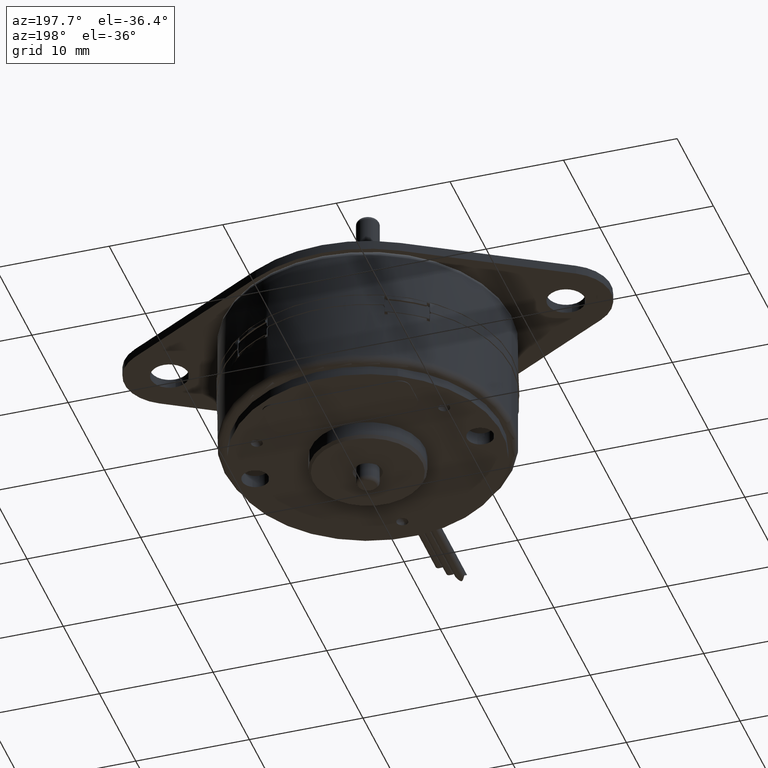
[diagram: clean part render]
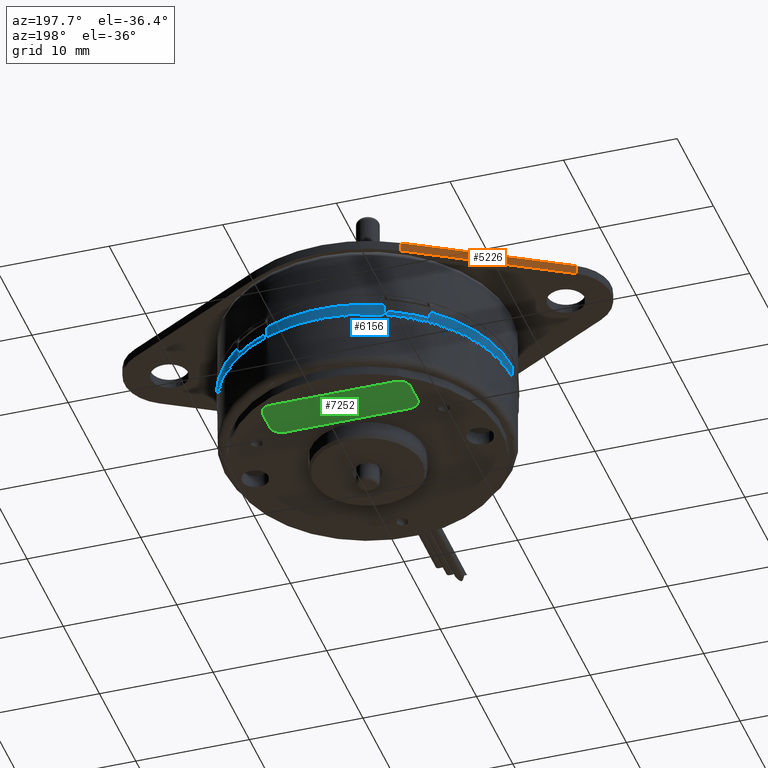
[diagram: same view with three faces highlighted in distinct colors, each labeled with its STEP entity id]
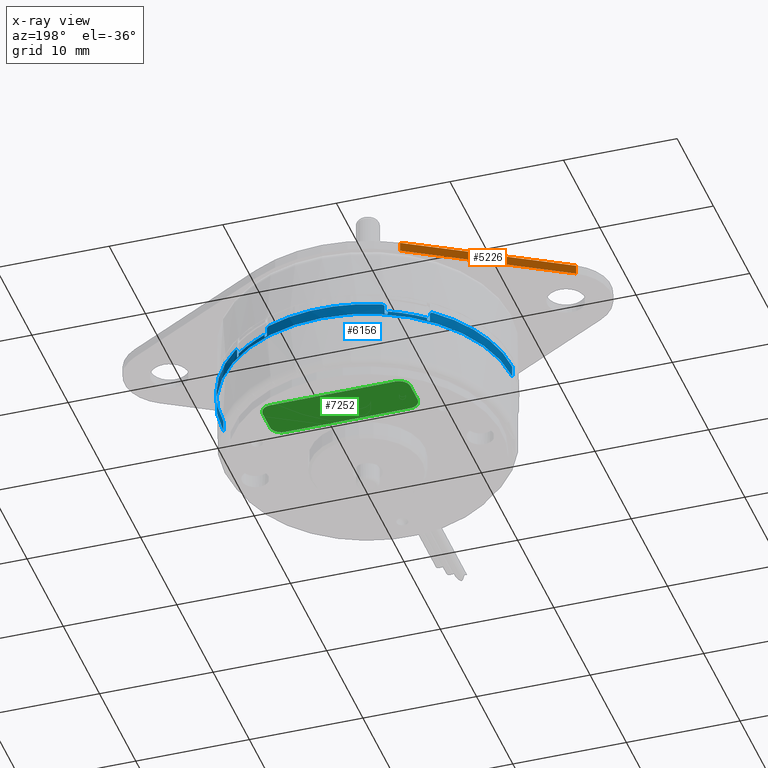
[diagram: x-ray of the same camera — body ghosted, the three highlighted faces saturated]
A machine part, auxiliary view with three faces highlighted in distinct colors.
The next image is the same camera in x-ray (body ghosted, the three faces saturated) — at least one of them is partly hidden behind the body in this view.
Their STEP definitions:

[orange] entity #5226 — the highlighted planar face has unit normal (-0.5007, 0.8656, 0).
#471=DIRECTION('',(-8.656047991239E-1,-5.007278020378E-1,0.E0));
#472=VECTOR('',#471,5.946704969979E-1);
#473=CARTESIAN_POINT('',(-2.503639010190E-1,4.328023995619E-1,2.28E-1));
#474=LINE('',#473,#472);
#549=DIRECTION('',(0.E0,0.E0,1.E0));
#550=VECTOR('',#549,3.2E-2);
#551=CARTESIAN_POINT('',(-7.651135371178E-1,1.350343486634E-1,2.28E-1));
#552=LINE('',#551,#550);
#561=DIRECTION('',(0.E0,0.E0,-1.E0));
#562=VECTOR('',#561,3.2E-2);
#563=CARTESIAN_POINT('',(-2.503639010190E-1,4.328023995619E-1,2.6E-1));
#564=LINE('',#563,#562);
#597=DIRECTION('',(8.656047991239E-1,5.007278020378E-1,0.E0));
#598=VECTOR('',#597,5.946704969979E-1);
#599=CARTESIAN_POINT('',(-7.651135371178E-1,1.350343486634E-1,2.6E-1));
#600=LINE('',#599,#598);
#4181=CARTESIAN_POINT('',(-2.503639010192E-1,4.328023995618E-1,2.28E-1));
#4182=VERTEX_POINT('',#4181);
#4183=CARTESIAN_POINT('',(-7.651135371178E-1,1.350343486634E-1,2.28E-1));
#4184=VERTEX_POINT('',#4183);
#4219=CARTESIAN_POINT('',(-7.651135371178E-1,1.350343486634E-1,2.6E-1));
#4220=VERTEX_POINT('',#4219);
#4221=CARTESIAN_POINT('',(-2.503639010190E-1,4.328023995619E-1,2.6E-1));
#4222=VERTEX_POINT('',#4221);
#5213=CARTESIAN_POINT('',(-5.077387190684E-1,2.839183741126E-1,2.44E-1));
#5214=DIRECTION('',(-5.007278020377E-1,8.656047991240E-1,0.E0));
#5215=DIRECTION('',(-8.656047991240E-1,-5.007278020377E-1,0.E0));
#5216=AXIS2_PLACEMENT_3D('',#5213,#5214,#5215);
#5217=PLANE('',#5216);
#5218=ORIENTED_EDGE('',*,*,#5088,.F.);
#5220=ORIENTED_EDGE('',*,*,#5219,.F.);
#5222=ORIENTED_EDGE('',*,*,#5221,.F.);
#5223=ORIENTED_EDGE('',*,*,#5205,.F.);
#5224=EDGE_LOOP('',(#5218,#5220,#5222,#5223));
#5225=FACE_OUTER_BOUND('',#5224,.F.);
#5226=ADVANCED_FACE('',(#5225),#5217,.T.);
#5088=EDGE_CURVE('',#4182,#4184,#474,.T.);
#5205=EDGE_CURVE('',#4184,#4220,#552,.T.);
#5219=EDGE_CURVE('',#4222,#4182,#564,.T.);
#5221=EDGE_CURVE('',#4220,#4222,#600,.T.);

[blue] entity #6156 — the highlighted cylindrical surface (partial cylindrical patch) has radius 12.7152 mm, axis along (0, 0, 1).
#1184=CARTESIAN_POINT('',(0.E0,0.E0,-3.999999999999E-2));
#1185=DIRECTION('',(0.E0,0.E0,-1.E0));
#1186=DIRECTION('',(-1.E0,0.E0,0.E0));
#1187=AXIS2_PLACEMENT_3D('',#1184,#1185,#1186);
#1204=CARTESIAN_POINT('',(-3.418327743804E-1,3.657194476090E-1,0.E0));
#1205=CARTESIAN_POINT('',(-3.407988221647E-1,3.666858680627E-1,0.E0));
#1206=CARTESIAN_POINT('',(-3.388965643415E-1,3.684482163924E-1,
-5.370240321818E-4));
#1207=CARTESIAN_POINT('',(-3.363476169728E-1,3.707741419090E-1,
-2.820784511996E-3));
#1208=CARTESIAN_POINT('',(-3.347153958256E-1,3.722452590052E-1,
-6.234437307436E-3));
#1209=CARTESIAN_POINT('',(-3.343561370262E-1,3.725672202878E-1,
-8.683681703894E-3));
#1210=CARTESIAN_POINT('',(-3.343561370262E-1,3.725672202878E-1,
-9.999999999995E-3));
#1212=DIRECTION('',(5.736152293896E-13,-5.283839209790E-13,-1.E0));
#1213=VECTOR('',#1212,2.7E-2);
#1214=CARTESIAN_POINT('',(-3.343561370262E-1,3.725672202878E-1,
-9.999999999995E-3));
#1215=LINE('',#1214,#1213);
#1216=DIRECTION('',(-3.885780586189E-13,-2.053912595557E-13,1.E0));
#1217=VECTOR('',#1216,9.999999999999E-3);
#1218=CARTESIAN_POINT('',(-3.267666575324E-1,3.792412313095E-1,-3.7E-2));
#1219=LINE('',#1218,#1217);
#1220=DIRECTION('',(1.998401444325E-13,-1.110223024625E-14,-1.E0));
#1221=VECTOR('',#1220,1.E-2);
#1222=CARTESIAN_POINT('',(-2.135461308597E-1,4.527675010365E-1,-2.7E-2));
#1223=LINE('',#1222,#1221);
#1224=DIRECTION('',(-4.317533984655E-13,-9.169619795981E-13,1.E0));
#1225=VECTOR('',#1224,2.699999999999E-2);
#1226=CARTESIAN_POINT('',(-2.043621989945E-1,4.569862707151E-1,-3.7E-2));
#1227=LINE('',#1226,#1225);
#1228=CARTESIAN_POINT('',(-2.043621989946E-1,4.569862707151E-1,-1.E-2));
#1229=CARTESIAN_POINT('',(-2.043621989946E-1,4.569862707151E-1,
-8.632951539519E-3));
#1230=CARTESIAN_POINT('',(-2.038849576157E-1,4.572000986402E-1,
-6.114467238421E-3));
#1231=CARTESIAN_POINT('',(-2.018111459979E-1,4.581217662711E-1,
-2.708755781166E-3));
#1232=CARTESIAN_POINT('',(-1.986414901143E-1,4.595067200905E-1,
-4.964871199830E-4));
#1233=CARTESIAN_POINT('',(-1.963216851718E-1,4.604997466312E-1,0.E0));
#1234=CARTESIAN_POINT('',(-1.950654249900E-1,4.610312787366E-1,0.E0));
#1236=CARTESIAN_POINT('',(1.950654249900E-1,4.610312787366E-1,0.E0));
#1237=CARTESIAN_POINT('',(1.963688402588E-1,4.604797949977E-1,0.E0));
#1238=CARTESIAN_POINT('',(1.987525435311E-1,4.594588076478E-1,
-5.370240319676E-4));
#1239=CARTESIAN_POINT('',(2.019141325177E-1,4.580762674940E-1,
-2.820784511618E-3));
#1240=CARTESIAN_POINT('',(2.039219490088E-1,4.571835165084E-1,
-6.234437305840E-3));
#1241=CARTESIAN_POINT('',(2.043621989946E-1,4.569862707151E-1,
-8.683681703205E-3));
#1242=CARTESIAN_POINT('',(2.043621989946E-1,4.569862707151E-1,-1.E-2));
#1244=DIRECTION('',(-7.977158028790E-13,3.556825615929E-13,-1.E0));
#1245=VECTOR('',#1244,2.699999999999E-2);
#1246=CARTESIAN_POINT('',(2.043621989946E-1,4.569862707151E-1,-1.E-2));
#1247=LINE('',#1246,#1245);
#1248=DIRECTION('',(-1.526556658860E-12,8.049116928533E-13,1.E0));
#1249=VECTOR('',#1248,9.999999999999E-3);
#1250=CARTESIAN_POINT('',(2.135461308598E-1,4.527675010365E-1,-3.7E-2));
#1251=LINE('',#1250,#1249);
#1252=DIRECTION('',(1.110223024625E-13,-7.771561172376E-14,-1.E0));
#1253=VECTOR('',#1252,1.E-2);
#1254=CARTESIAN_POINT('',(3.267666575324E-1,3.792412313095E-1,-2.7E-2));
#1255=LINE('',#1254,#1253);
#1256=DIRECTION('',(-2.981154417976E-13,-6.990293118013E-14,1.E0));
#1257=VECTOR('',#1256,2.699999999999E-2);
#1258=CARTESIAN_POINT('',(3.343561370262E-1,3.725672202877E-1,-3.7E-2));
#1259=LINE('',#1258,#1257);
#1260=CARTESIAN_POINT('',(3.343561370262E-1,3.725672202877E-1,
-1.000000000001E-2));
#1261=CARTESIAN_POINT('',(3.343561370262E-1,3.725672202877E-1,
-8.632951539783E-3));
#1262=CARTESIAN_POINT('',(3.347455901121E-1,3.722182102464E-1,
-6.114467239023E-3));
#1263=CARTESIAN_POINT('',(3.364310705658E-1,3.706985650610E-1,
-2.708755781353E-3));
#1264=CARTESIAN_POINT('',(3.389855040306E-1,3.683662517934E-1,
-4.964871197591E-4));
#1265=CARTESIAN_POINT('',(3.408362285909E-1,3.666509048072E-1,0.E0));
#1266=CARTESIAN_POINT('',(3.418327743805E-1,3.657194476089E-1,0.E0));
#1287=CARTESIAN_POINT('',(0.E0,0.E0,0.E0));
#1288=DIRECTION('',(0.E0,0.E0,1.E0));
#1289=DIRECTION('',(1.E0,0.E0,0.E0));
#1290=AXIS2_PLACEMENT_3D('',#1287,#1288,#1289);
#1337=CARTESIAN_POINT('',(0.E0,0.E0,-2.699999999999E-2));
#1338=DIRECTION('',(0.E0,0.E0,1.E0));
#1339=DIRECTION('',(6.527500150466E-1,7.575733745695E-1,0.E0));
#1340=AXIS2_PLACEMENT_3D('',#1337,#1338,#1339);
#1351=CARTESIAN_POINT('',(0.E0,0.E0,-3.699999999999E-2));
#1352=DIRECTION('',(0.E0,0.E0,1.E0));
#1353=DIRECTION('',(6.679107811150E-1,7.442413509543E-1,0.E0));
#1354=AXIS2_PLACEMENT_3D('',#1351,#1352,#1353);
#1385=CARTESIAN_POINT('',(0.E0,0.E0,-3.699999999999E-2));
#1386=DIRECTION('',(0.E0,0.E0,1.E0));
#1387=DIRECTION('',(4.265803652812E-1,9.044496624780E-1,0.E0));
#1388=AXIS2_PLACEMENT_3D('',#1385,#1386,#1387);
#1424=CARTESIAN_POINT('',(0.E0,0.E0,0.E0));
#1425=DIRECTION('',(0.E0,0.E0,1.E0));
#1426=DIRECTION('',(3.896632540752E-1,9.209574085828E-1,0.E0));
#1427=AXIS2_PLACEMENT_3D('',#1424,#1425,#1426);
#1445=CARTESIAN_POINT('',(0.E0,0.E0,-3.699999999999E-2));
#1446=DIRECTION('',(0.E0,0.E0,1.E0));
#1447=DIRECTION('',(-4.082345165692E-1,9.128770889235E-1,0.E0));
#1448=AXIS2_PLACEMENT_3D('',#1445,#1446,#1447);
#1463=CARTESIAN_POINT('',(0.E0,0.E0,-2.699999999999E-2));
#1464=DIRECTION('',(0.E0,0.E0,1.E0));
#1465=DIRECTION('',(-4.265803652811E-1,9.044496624780E-1,0.E0));
#1466=AXIS2_PLACEMENT_3D('',#1463,#1464,#1465);
#1481=CARTESIAN_POINT('',(0.E0,0.E0,-3.699999999999E-2));
#1482=DIRECTION('',(0.E0,0.E0,1.E0));
#1483=DIRECTION('',(-6.527500150467E-1,7.575733745695E-1,0.E0));
#1484=AXIS2_PLACEMENT_3D('',#1481,#1482,#1483);
#1507=CARTESIAN_POINT('',(0.E0,0.E0,0.E0));
#1508=DIRECTION('',(0.E0,0.E0,1.E0));
#1509=DIRECTION('',(-6.828461334007E-1,7.305622205532E-1,0.E0));
#1510=AXIS2_PLACEMENT_3D('',#1507,#1508,#1509);
#1547=DIRECTION('',(0.E0,0.E0,-1.E0));
#1548=VECTOR('',#1547,3.999999999999E-2);
#1549=CARTESIAN_POINT('',(-5.006E-1,0.E0,0.E0));
#1550=LINE('',#1549,#1548);
#1551=DIRECTION('',(0.E0,0.E0,1.E0));
#1552=VECTOR('',#1551,3.999999999999E-2);
#1553=CARTESIAN_POINT('',(5.006E-1,0.E0,-3.999999999999E-2));
#1554=LINE('',#1553,#1552);
#3775=CARTESIAN_POINT('',(-5.006E-1,0.E0,-3.999999999999E-2));
#3776=CARTESIAN_POINT('',(5.006E-1,0.E0,-3.999999999999E-2));
#3777=VERTEX_POINT('',#3775);
#3778=VERTEX_POINT('',#3776);
#3779=CARTESIAN_POINT('',(5.006E-1,0.E0,0.E0));
#3780=CARTESIAN_POINT('',(3.418327743805E-1,3.657194476089E-1,0.E0));
#3781=VERTEX_POINT('',#3779);
#3782=VERTEX_POINT('',#3780);
#3783=CARTESIAN_POINT('',(-5.006E-1,0.E0,0.E0));
#3784=VERTEX_POINT('',#3783);
#3785=CARTESIAN_POINT('',(-3.418327743804E-1,3.657194476089E-1,0.E0));
#3786=VERTEX_POINT('',#3785);
#3787=VERTEX_POINT('',#1210);
#3788=CARTESIAN_POINT('',(-3.343561370262E-1,3.725672202878E-1,-3.7E-2));
#3789=VERTEX_POINT('',#3788);
#3790=CARTESIAN_POINT('',(-3.267666575324E-1,3.792412313095E-1,
-3.699999999999E-2));
#3791=VERTEX_POINT('',#3790);
#3792=CARTESIAN_POINT('',(-3.267666575324E-1,3.792412313095E-1,-2.7E-2));
#3793=VERTEX_POINT('',#3792);
#3794=CARTESIAN_POINT('',(-2.135461308597E-1,4.527675010365E-1,
-2.699999999999E-2));
#3795=VERTEX_POINT('',#3794);
#3796=CARTESIAN_POINT('',(-2.135461308597E-1,4.527675010365E-1,-3.7E-2));
#3797=VERTEX_POINT('',#3796);
#3798=CARTESIAN_POINT('',(-2.043621989946E-1,4.569862707151E-1,
-3.699999999999E-2));
#3799=VERTEX_POINT('',#3798);
#3800=CARTESIAN_POINT('',(-2.043621989946E-1,4.569862707151E-1,-1.E-2));
#3801=VERTEX_POINT('',#3800);
#3802=VERTEX_POINT('',#1234);
#3803=CARTESIAN_POINT('',(1.950654249900E-1,4.610312787366E-1,0.E0));
#3804=VERTEX_POINT('',#3803);
#3805=VERTEX_POINT('',#1242);
#3806=CARTESIAN_POINT('',(2.043621989946E-1,4.569862707151E-1,-3.7E-2));
#3807=VERTEX_POINT('',#3806);
#3808=CARTESIAN_POINT('',(2.135461308598E-1,4.527675010365E-1,
-3.699999999999E-2));
#3809=VERTEX_POINT('',#3808);
#3810=CARTESIAN_POINT('',(2.135461308597E-1,4.527675010365E-1,-2.7E-2));
#3811=VERTEX_POINT('',#3810);
#3812=CARTESIAN_POINT('',(3.267666575323E-1,3.792412313095E-1,
-2.699999999999E-2));
#3813=VERTEX_POINT('',#3812);
#3814=CARTESIAN_POINT('',(3.267666575324E-1,3.792412313095E-1,-3.7E-2));
#3815=VERTEX_POINT('',#3814);
#3816=CARTESIAN_POINT('',(3.343561370262E-1,3.725672202877E-1,
-3.699999999999E-2));
#3817=VERTEX_POINT('',#3816);
#3818=CARTESIAN_POINT('',(3.343561370262E-1,3.725672202877E-1,
-1.000000000001E-2));
#3819=VERTEX_POINT('',#3818);
#6102=CARTESIAN_POINT('',(0.E0,0.E0,-4.298897453355E-2));
#6103=DIRECTION('',(0.E0,0.E0,1.E0));
#6104=DIRECTION('',(-1.E0,0.E0,0.E0));
#6105=AXIS2_PLACEMENT_3D('',#6102,#6103,#6104);
#6106=CYLINDRICAL_SURFACE('',#6105,5.006E-1);
#6108=ORIENTED_EDGE('',*,*,#6107,.F.);
#6110=ORIENTED_EDGE('',*,*,#6109,.F.);
#6111=ORIENTED_EDGE('',*,*,#6091,.F.);
#6113=ORIENTED_EDGE('',*,*,#6112,.F.);
#6115=ORIENTED_EDGE('',*,*,#6114,.F.);
#6117=ORIENTED_EDGE('',*,*,#6116,.T.);
#6119=ORIENTED_EDGE('',*,*,#6118,.T.);
#6121=ORIENTED_EDGE('',*,*,#6120,.F.);
#6123=ORIENTED_EDGE('',*,*,#6122,.T.);
#6125=ORIENTED_EDGE('',*,*,#6124,.F.);
#6127=ORIENTED_EDGE('',*,*,#6126,.T.);
#6129=ORIENTED_EDGE('',*,*,#6128,.F.);
#6131=ORIENTED_EDGE('',*,*,#6130,.T.);
#6133=ORIENTED_EDGE('',*,*,#6132,.T.);
#6135=ORIENTED_EDGE('',*,*,#6134,.F.);
#6137=ORIENTED_EDGE('',*,*,#6136,.T.);
#6139=ORIENTED_EDGE('',*,*,#6138,.T.);
#6141=ORIENTED_EDGE('',*,*,#6140,.F.);
#6143=ORIENTED_EDGE('',*,*,#6142,.T.);
#6145=ORIENTED_EDGE('',*,*,#6144,.F.);
#6147=ORIENTED_EDGE('',*,*,#6146,.T.);
#6149=ORIENTED_EDGE('',*,*,#6148,.F.);
#6151=ORIENTED_EDGE('',*,*,#6150,.T.);
#6153=ORIENTED_EDGE('',*,*,#6152,.T.);
#6154=EDGE_LOOP('',(#6108,#6110,#6111,#6113,#6115,#6117,#6119,#6121,#6123,#6125,
#6127,#6129,#6131,#6133,#6135,#6137,#6139,#6141,#6143,#6145,#6147,#6149,#6151,
#6153));
#6155=FACE_OUTER_BOUND('',#6154,.F.);
#6156=ADVANCED_FACE('',(#6155),#6106,.F.);
#1188=CIRCLE('',#1187,5.006E-1);
#1211=B_SPLINE_CURVE_WITH_KNOTS('',3,(#1204,#1205,#1206,#1207,#1208,#1209,
#1210),.UNSPECIFIED.,.F.,.F.,(4,1,1,1,4),(0.E0,2.5E-1,5.E-1,7.5E-1,1.E0),
.UNSPECIFIED.);
#1235=B_SPLINE_CURVE_WITH_KNOTS('',3,(#1228,#1229,#1230,#1231,#1232,#1233,
#1234),.UNSPECIFIED.,.F.,.F.,(4,1,1,1,4),(0.E0,2.5E-1,5.E-1,7.5E-1,1.E0),
.UNSPECIFIED.);
#1243=B_SPLINE_CURVE_WITH_KNOTS('',3,(#1236,#1237,#1238,#1239,#1240,#1241,
#1242),.UNSPECIFIED.,.F.,.F.,(4,1,1,1,4),(0.E0,2.5E-1,5.E-1,7.5E-1,1.E0),
.UNSPECIFIED.);
#1267=B_SPLINE_CURVE_WITH_KNOTS('',3,(#1260,#1261,#1262,#1263,#1264,#1265,
#1266),.UNSPECIFIED.,.F.,.F.,(4,1,1,1,4),(0.E0,2.5E-1,5.E-1,7.5E-1,1.E0),
.UNSPECIFIED.);
#1291=CIRCLE('',#1290,5.006E-1);
#1341=CIRCLE('',#1340,5.006E-1);
#1355=CIRCLE('',#1354,5.006E-1);
#1389=CIRCLE('',#1388,5.006E-1);
#1428=CIRCLE('',#1427,5.006E-1);
#1449=CIRCLE('',#1448,5.006E-1);
#1467=CIRCLE('',#1466,5.006E-1);
#1485=CIRCLE('',#1484,5.006E-1);
#1511=CIRCLE('',#1510,5.006E-1);
#6091=EDGE_CURVE('',#3777,#3778,#1188,.T.);
#6107=EDGE_CURVE('',#3781,#3782,#1291,.T.);
#6109=EDGE_CURVE('',#3778,#3781,#1554,.T.);
#6112=EDGE_CURVE('',#3784,#3777,#1550,.T.);
#6114=EDGE_CURVE('',#3786,#3784,#1511,.T.);
#6116=EDGE_CURVE('',#3786,#3787,#1211,.T.);
#6118=EDGE_CURVE('',#3787,#3789,#1215,.T.);
#6120=EDGE_CURVE('',#3791,#3789,#1485,.T.);
#6122=EDGE_CURVE('',#3791,#3793,#1219,.T.);
#6124=EDGE_CURVE('',#3795,#3793,#1467,.T.);
#6126=EDGE_CURVE('',#3795,#3797,#1223,.T.);
#6128=EDGE_CURVE('',#3799,#3797,#1449,.T.);
#6130=EDGE_CURVE('',#3799,#3801,#1227,.T.);
#6132=EDGE_CURVE('',#3801,#3802,#1235,.T.);
#6134=EDGE_CURVE('',#3804,#3802,#1428,.T.);
#6136=EDGE_CURVE('',#3804,#3805,#1243,.T.);
#6138=EDGE_CURVE('',#3805,#3807,#1247,.T.);
#6140=EDGE_CURVE('',#3809,#3807,#1389,.T.);
#6142=EDGE_CURVE('',#3809,#3811,#1251,.T.);
#6144=EDGE_CURVE('',#3813,#3811,#1341,.T.);
#6146=EDGE_CURVE('',#3813,#3815,#1255,.T.);
#6148=EDGE_CURVE('',#3817,#3815,#1355,.T.);
#6150=EDGE_CURVE('',#3817,#3819,#1259,.T.);
#6152=EDGE_CURVE('',#3819,#3782,#1267,.T.);

[green] entity #7252 — the highlighted planar face has unit normal (0, 0, 1).
#2060=DIRECTION('',(0.E0,1.E0,0.E0));
#2061=VECTOR('',#2060,7.874015748102E-2);
#2062=CARTESIAN_POINT('',(-2.559055118110E-1,2.606299212595E-1,
-2.629921259842E-1));
#2063=LINE('',#2062,#2061);
#2072=DIRECTION('',(-1.E0,-7.710044723868E-14,0.E0));
#2073=VECTOR('',#2072,4.330708661421E-1);
#2074=CARTESIAN_POINT('',(2.165354330709E-1,2.212598425197E-1,
-2.629921259842E-1));
#2075=LINE('',#2074,#2073);
#2084=DIRECTION('',(0.E0,-1.E0,0.E0));
#2085=VECTOR('',#2084,7.874015748038E-2);
#2086=CARTESIAN_POINT('',(2.559055118110E-1,3.393700787402E-1,
-2.629921259842E-1));
#2087=LINE('',#2086,#2085);
#2096=DIRECTION('',(1.E0,-7.690817679673E-14,0.E0));
#2097=VECTOR('',#2096,4.330708661419E-1);
#2098=CARTESIAN_POINT('',(-2.165354330711E-1,3.787401574803E-1,
-2.629921259842E-1));
#2099=LINE('',#2098,#2097);
#2100=CARTESIAN_POINT('',(-2.165354330709E-1,3.393700787402E-1,
-2.629921259842E-1));
#2101=DIRECTION('',(0.E0,0.E0,1.E0));
#2102=DIRECTION('',(-1.602516452868E-11,1.E0,0.E0));
#2103=AXIS2_PLACEMENT_3D('',#2100,#2101,#2102);
#2105=CARTESIAN_POINT('',(-2.165354330709E-1,2.606299212598E-1,
-2.629921259842E-1));
#2106=DIRECTION('',(0.E0,0.E0,1.E0));
#2107=DIRECTION('',(-1.E0,-1.808726501904E-11,0.E0));
#2108=AXIS2_PLACEMENT_3D('',#2105,#2106,#2107);
#2110=CARTESIAN_POINT('',(2.165354330709E-1,2.606299212598E-1,
-2.629921259842E-1));
#2111=DIRECTION('',(0.E0,0.E0,1.E0));
#2112=DIRECTION('',(3.209121857144E-12,-1.E0,0.E0));
#2113=AXIS2_PLACEMENT_3D('',#2110,#2111,#2112);
#2115=CARTESIAN_POINT('',(2.165354330709E-1,3.393700787402E-1,
-2.629921259842E-1));
#2116=DIRECTION('',(0.E0,0.E0,1.E0));
#2117=DIRECTION('',(1.E0,-1.147726358399E-12,0.E0));
#2118=AXIS2_PLACEMENT_3D('',#2115,#2116,#2117);
#4028=CARTESIAN_POINT('',(-2.559055118110E-1,3.393700787405E-1,
-2.629921259842E-1));
#4029=VERTEX_POINT('',#4028);
#4030=CARTESIAN_POINT('',(-2.165354330715E-1,3.787401574804E-1,
-2.629921259842E-1));
#4031=VERTEX_POINT('',#4030);
#4032=CARTESIAN_POINT('',(-2.559055118110E-1,2.606299212595E-1,
-2.629921259842E-1));
#4033=VERTEX_POINT('',#4032);
#4034=CARTESIAN_POINT('',(-2.165354330712E-1,2.212598425197E-1,
-2.629921259842E-1));
#4035=VERTEX_POINT('',#4034);
#4036=CARTESIAN_POINT('',(2.165354330709E-1,2.212598425197E-1,
-2.629921259842E-1));
#4037=VERTEX_POINT('',#4036);
#4038=CARTESIAN_POINT('',(2.559055118110E-1,2.606299212598E-1,
-2.629921259842E-1));
#4039=VERTEX_POINT('',#4038);
#4040=CARTESIAN_POINT('',(2.559055118110E-1,3.393700787402E-1,
-2.629921259842E-1));
#4041=VERTEX_POINT('',#4040);
#4042=CARTESIAN_POINT('',(2.165354330708E-1,3.787401574803E-1,
-2.629921259842E-1));
#4043=VERTEX_POINT('',#4042);
#7237=CARTESIAN_POINT('',(0.E0,3.E-1,-2.629921259843E-1));
#7238=DIRECTION('',(0.E0,0.E0,1.E0));
#7239=DIRECTION('',(1.E0,0.E0,0.E0));
#7240=AXIS2_PLACEMENT_3D('',#7237,#7238,#7239);
#7241=PLANE('',#7240);
#7242=ORIENTED_EDGE('',*,*,#7133,.T.);
#7243=ORIENTED_EDGE('',*,*,#7148,.F.);
#7244=ORIENTED_EDGE('',*,*,#7162,.T.);
#7245=ORIENTED_EDGE('',*,*,#7176,.F.);
#7246=ORIENTED_EDGE('',*,*,#7190,.T.);
#7247=ORIENTED_EDGE('',*,*,#7204,.F.);
#7248=ORIENTED_EDGE('',*,*,#7218,.T.);
#7249=ORIENTED_EDGE('',*,*,#7231,.F.);
#7250=EDGE_LOOP('',(#7242,#7243,#7244,#7245,#7246,#7247,#7248,#7249));
#7251=FACE_OUTER_BOUND('',#7250,.F.);
#7252=ADVANCED_FACE('',(#7251),#7241,.F.);
#2104=CIRCLE('',#2103,3.937007874020E-2);
#2109=CIRCLE('',#2108,3.937007874020E-2);
#2114=CIRCLE('',#2113,3.937007874010E-2);
#2119=CIRCLE('',#2118,3.937007874010E-2);
#7133=EDGE_CURVE('',#4031,#4029,#2104,.T.);
#7148=EDGE_CURVE('',#4033,#4029,#2063,.T.);
#7162=EDGE_CURVE('',#4033,#4035,#2109,.T.);
#7176=EDGE_CURVE('',#4037,#4035,#2075,.T.);
#7190=EDGE_CURVE('',#4037,#4039,#2114,.T.);
#7204=EDGE_CURVE('',#4041,#4039,#2087,.T.);
#7218=EDGE_CURVE('',#4041,#4043,#2119,.T.);
#7231=EDGE_CURVE('',#4031,#4043,#2099,.T.);